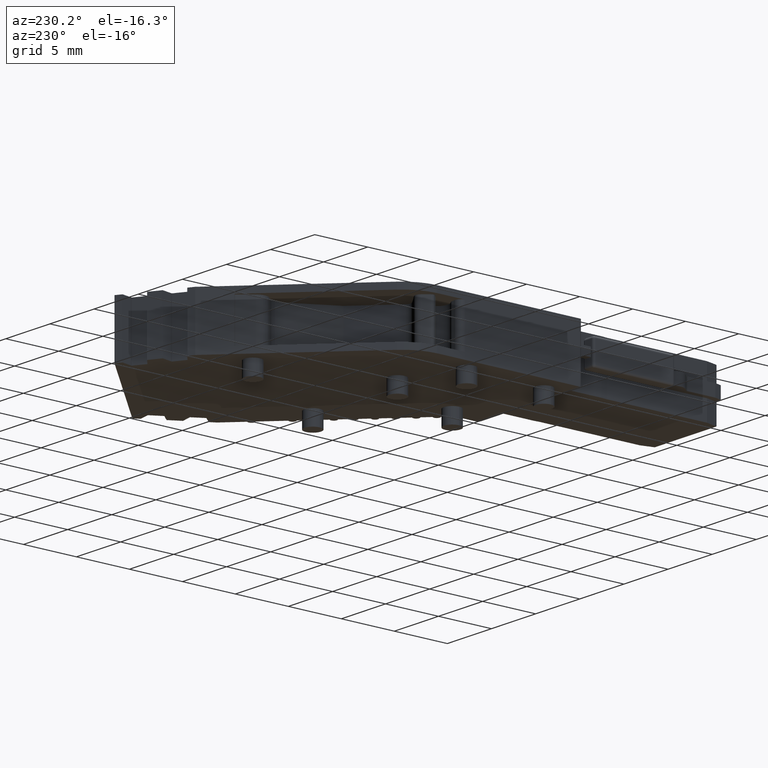
[diagram: clean part render]
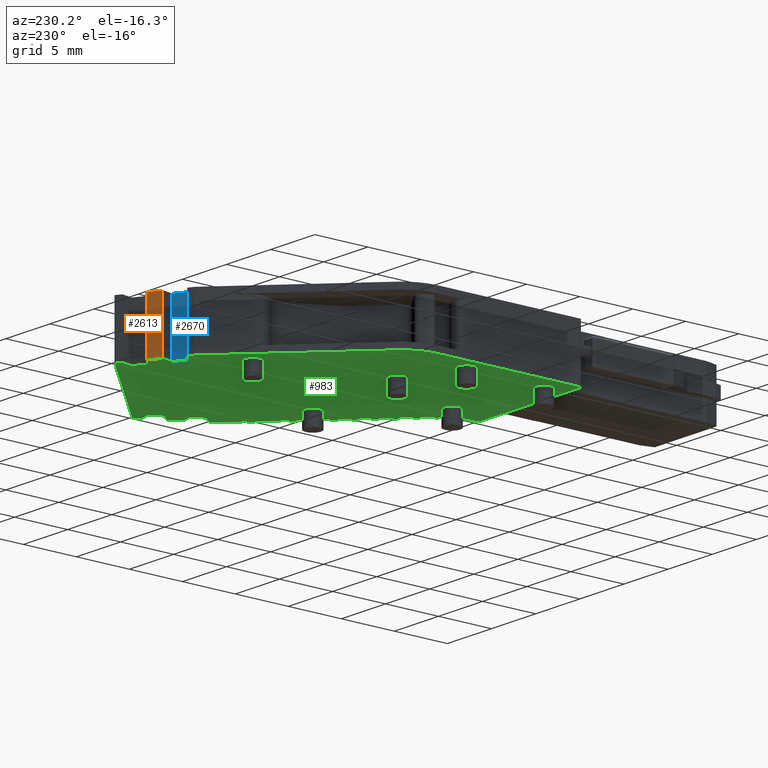
[diagram: same view with three faces highlighted in distinct colors, each labeled with its STEP entity id]
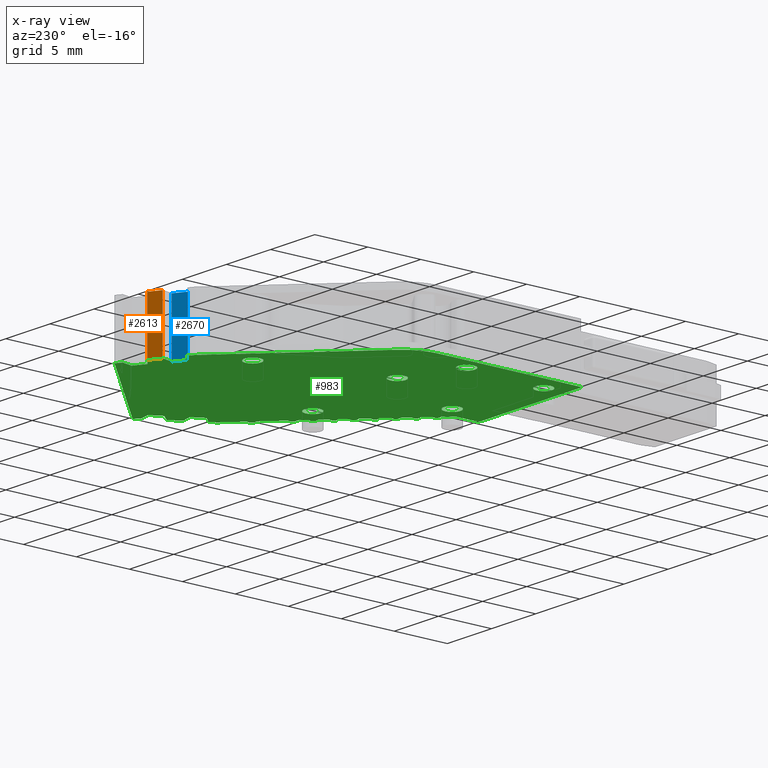
[diagram: x-ray of the same camera — body ghosted, the three highlighted faces saturated]
A machine part, auxiliary view with three faces highlighted in distinct colors.
The next image is the same camera in x-ray (body ghosted, the three faces saturated) — at least one of them is partly hidden behind the body in this view.
Their STEP definitions:

[orange] entity #2613 — the highlighted planar face has unit normal (-0.5, 0.866, 0).
#105 = LINE ( 'NONE', #997, #2638 ) ;
#200 = VERTEX_POINT ( 'NONE', #5147 ) ;
#626 = FACE_OUTER_BOUND ( 'NONE', #4317, .T. ) ;
#769 = VERTEX_POINT ( 'NONE', #5291 ) ;
#997 = CARTESIAN_POINT ( 'NONE',  ( 8.417137097009803200, 43.81367678528406600, 5.150000000000003000 ) ) ;
#1209 = DIRECTION ( 'NONE',  ( -0.0000000000000000000, -0.0000000000000000000, -1.000000000000000000 ) ) ;
#1239 = EDGE_CURVE ( 'NONE', #200, #769, #105, .T. ) ;
#1716 = CARTESIAN_POINT ( 'NONE',  ( 7.378705921240844600, 43.21413918230435100, 0.0000000000000000000 ) ) ;
#1759 = DIRECTION ( 'NONE',  ( -0.4999994271306807400, 0.8660257345304417400, 0.0000000000000000000 ) ) ;
#1802 = CARTESIAN_POINT ( 'NONE',  ( 7.378705921240842800, 43.21413918230435800, 0.0000000000000000000 ) ) ;
#2036 = DIRECTION ( 'NONE',  ( 0.8660257345304417400, 0.4999994271306807400, -0.0000000000000000000 ) ) ;
#2120 = ORIENTED_EDGE ( 'NONE', *, *, #2528, .T. ) ;
#2246 = LINE ( 'NONE', #4117, #5973 ) ;
#2528 = EDGE_CURVE ( 'NONE', #3156, #4319, #2246, .T. ) ;
#2613 = ADVANCED_FACE ( 'NONE', ( #626 ), #5631, .T. ) ;
#2638 = VECTOR ( 'NONE', #2036, 1000.000000000000000 ) ;
#2843 = EDGE_CURVE ( 'NONE', #3156, #769, #5892, .T. ) ;
#2887 = VECTOR ( 'NONE', #1209, 1000.000000000000000 ) ;
#2918 = DIRECTION ( 'NONE',  ( 0.0000000000000000000, 0.0000000000000000000, 1.000000000000000000 ) ) ;
#3097 = ORIENTED_EDGE ( 'NONE', *, *, #5575, .F. ) ;
#3156 = VERTEX_POINT ( 'NONE', #4101 ) ;
#3196 = DIRECTION ( 'NONE',  ( -0.8660257345304417400, -0.4999994271306807400, 0.0000000000000000000 ) ) ;
#3602 = VECTOR ( 'NONE', #2918, 1000.000000000000000 ) ;
#3804 = ORIENTED_EDGE ( 'NONE', *, *, #2843, .F. ) ;
#4101 = CARTESIAN_POINT ( 'NONE',  ( 8.417137097009803200, 43.81367678528406600, 0.0000000000000000000 ) ) ;
#4117 = CARTESIAN_POINT ( 'NONE',  ( 8.417137097009803200, 43.81367678528406600, 0.0000000000000000000 ) ) ;
#4317 = EDGE_LOOP ( 'NONE', ( #3804, #2120, #3097, #4967 ) ) ;
#4319 = VERTEX_POINT ( 'NONE', #1802 ) ;
#4658 = CARTESIAN_POINT ( 'NONE',  ( 8.417137097009803200, 43.81367678528406600, 0.0000000000000000000 ) ) ;
#4850 = LINE ( 'NONE', #1716, #2887 ) ;
#4967 = ORIENTED_EDGE ( 'NONE', *, *, #1239, .T. ) ;
#5107 = DIRECTION ( 'NONE',  ( -0.8660257345304417400, -0.4999994271306807400, 0.0000000000000000000 ) ) ;
#5147 = CARTESIAN_POINT ( 'NONE',  ( 7.378705921240842800, 43.21413918230435800, 5.150000000000003000 ) ) ;
#5291 = CARTESIAN_POINT ( 'NONE',  ( 8.417137097009803200, 43.81367678528406600, 5.150000000000003900 ) ) ;
#5575 = EDGE_CURVE ( 'NONE', #200, #4319, #4850, .T. ) ;
#5631 = PLANE ( 'NONE',  #6143 ) ;
#5833 = CARTESIAN_POINT ( 'NONE',  ( 8.417137097009803200, 43.81367678528406600, 0.0000000000000000000 ) ) ;
#5892 = LINE ( 'NONE', #5833, #3602 ) ;
#5973 = VECTOR ( 'NONE', #5107, 1000.000000000000000 ) ;
#6143 = AXIS2_PLACEMENT_3D ( 'NONE', #4658, #1759, #3196 ) ;

[blue] entity #2670 — the highlighted planar face has unit normal (-0.5, 0.866, 0).
#196 = DIRECTION ( 'NONE',  ( -0.0000000000000000000, -0.0000000000000000000, -1.000000000000000000 ) ) ;
#217 = ORIENTED_EDGE ( 'NONE', *, *, #4608, .T. ) ;
#232 = ORIENTED_EDGE ( 'NONE', *, *, #5470, .T. ) ;
#567 = DIRECTION ( 'NONE',  ( 0.8660257141351492800, 0.4999994624564156900, -0.0000000000000000000 ) ) ;
#842 = VECTOR ( 'NONE', #196, 1000.000000000000000 ) ;
#1777 = AXIS2_PLACEMENT_3D ( 'NONE', #5677, #2750, #3255 ) ;
#1803 = EDGE_LOOP ( 'NONE', ( #217, #4078, #3101, #232 ) ) ;
#2213 = VECTOR ( 'NONE', #567, 1000.000000000000000 ) ;
#2348 = CARTESIAN_POINT ( 'NONE',  ( 6.517595756780844200, 41.55575552381099400, 0.0000000000000000000 ) ) ;
#2375 = CARTESIAN_POINT ( 'NONE',  ( 7.599617310622031500, 42.18046006370693100, 0.5000000000000000000 ) ) ;
#2646 = CARTESIAN_POINT ( 'NONE',  ( 6.517595756780843400, 41.55575552381099400, 0.0000000000000000000 ) ) ;
#2670 = ADVANCED_FACE ( 'NONE', ( #5896 ), #4758, .T. ) ;
#2702 = CARTESIAN_POINT ( 'NONE',  ( 7.599617310622029700, 42.18046006370693100, 0.0000000000000000000 ) ) ;
#2750 = DIRECTION ( 'NONE',  ( -0.4999994624564156900, 0.8660257141351492800, 0.0000000000000000000 ) ) ;
#2941 = CARTESIAN_POINT ( 'NONE',  ( 7.599617310622033300, 42.18046006370693100, 0.0000000000000000000 ) ) ;
#2982 = CARTESIAN_POINT ( 'NONE',  ( 7.599617310622031500, 42.18046006370693100, 5.150000000000000400 ) ) ;
#3101 = ORIENTED_EDGE ( 'NONE', *, *, #4010, .F. ) ;
#3132 = LINE ( 'NONE', #2702, #3734 ) ;
#3255 = DIRECTION ( 'NONE',  ( -0.8660257141351492800, -0.4999994624564156900, 0.0000000000000000000 ) ) ;
#3344 = DIRECTION ( 'NONE',  ( -0.0000000000000000000, -0.0000000000000000000, -1.000000000000000000 ) ) ;
#3734 = VECTOR ( 'NONE', #4130, 1000.000000000000000 ) ;
#3912 = VERTEX_POINT ( 'NONE', #2982 ) ;
#4010 = EDGE_CURVE ( 'NONE', #4510, #5625, #4251, .T. ) ;
#4078 = ORIENTED_EDGE ( 'NONE', *, *, #4131, .T. ) ;
#4130 = DIRECTION ( 'NONE',  ( -0.8660257141351492800, -0.4999994624564156900, 0.0000000000000000000 ) ) ;
#4131 = EDGE_CURVE ( 'NONE', #5799, #5625, #3132, .T. ) ;
#4251 = LINE ( 'NONE', #2646, #842 ) ;
#4510 = VERTEX_POINT ( 'NONE', #5889 ) ;
#4548 = CARTESIAN_POINT ( 'NONE',  ( 7.599617310622029700, 42.18046006370693100, 5.150000000000000400 ) ) ;
#4608 = EDGE_CURVE ( 'NONE', #3912, #5799, #6255, .T. ) ;
#4758 = PLANE ( 'NONE',  #1777 ) ;
#4790 = LINE ( 'NONE', #4548, #2213 ) ;
#4945 = VECTOR ( 'NONE', #3344, 1000.000000000000000 ) ;
#5470 = EDGE_CURVE ( 'NONE', #4510, #3912, #4790, .T. ) ;
#5625 = VERTEX_POINT ( 'NONE', #2348 ) ;
#5677 = CARTESIAN_POINT ( 'NONE',  ( 7.599617310622029700, 42.18046006370693100, 0.5000000000000000000 ) ) ;
#5799 = VERTEX_POINT ( 'NONE', #2941 ) ;
#5889 = CARTESIAN_POINT ( 'NONE',  ( 6.517595756780843400, 41.55575552381099400, 5.150000000000000400 ) ) ;
#5896 = FACE_OUTER_BOUND ( 'NONE', #1803, .T. ) ;
#6255 = LINE ( 'NONE', #2375, #4945 ) ;

[green] entity #983 — the highlighted planar face has unit normal (0, 0, 1).
#2 = CARTESIAN_POINT ( 'NONE',  ( 5.053561328662396200, 15.08098714324118100, 0.0000000000000000000 ) ) ;
#11 = LINE ( 'NONE', #807, #3811 ) ;
#20 = EDGE_CURVE ( 'NONE', #5696, #5751, #2652, .T. ) ;
#30 = FACE_OUTER_BOUND ( 'NONE', #5474, .T. ) ;
#44 = DIRECTION ( 'NONE',  ( 1.000000000000000000, 0.0000000000000000000, 0.0000000000000000000 ) ) ;
#63 = CARTESIAN_POINT ( 'NONE',  ( 7.569491533559510500, 42.23263917925216800, 0.0000000000000000000 ) ) ;
#71 = ORIENTED_EDGE ( 'NONE', *, *, #5615, .F. ) ;
#97 = DIRECTION ( 'NONE',  ( 1.000000000000000000, 0.0000000000000000000, 0.0000000000000000000 ) ) ;
#98 = VECTOR ( 'NONE', #5073, 1000.000000000000100 ) ;
#106 = CARTESIAN_POINT ( 'NONE',  ( 9.246120766439412700, 21.22911409521963600, 0.0000000000000000000 ) ) ;
#121 = DIRECTION ( 'NONE',  ( -0.0000000000000000000, -0.0000000000000000000, -1.000000000000000000 ) ) ;
#136 = EDGE_CURVE ( 'NONE', #5364, #434, #5919, .T. ) ;
#157 = CARTESIAN_POINT ( 'NONE',  ( 1.193791458745420100, 26.86799290260244200, 0.0000000000000000000 ) ) ;
#164 = VERTEX_POINT ( 'NONE', #4546 ) ;
#167 = CARTESIAN_POINT ( 'NONE',  ( -0.3690583423251498900, 26.86799290260244200, 0.0000000000000000000 ) ) ;
#174 = LINE ( 'NONE', #1232, #3452 ) ;
#185 = CARTESIAN_POINT ( 'NONE',  ( -6.359304324338320500, 28.74249367019647700, 0.0000000000000000000 ) ) ;
#197 = LINE ( 'NONE', #2931, #3403 ) ;
#203 = CARTESIAN_POINT ( 'NONE',  ( 10.06298601933917100, 44.76391041218734300, 0.0000000000000000000 ) ) ;
#205 = VERTEX_POINT ( 'NONE', #5670 ) ;
#212 = EDGE_CURVE ( 'NONE', #1765, #1897, #4213, .T. ) ;
#221 = AXIS2_PLACEMENT_3D ( 'NONE', #1697, #712, #4097 ) ;
#235 = CIRCLE ( 'NONE', #2150, 0.2999999353295503800 ) ;
#238 = VECTOR ( 'NONE', #1479, 1000.000000000000100 ) ;
#246 = DIRECTION ( 'NONE',  ( 0.0000000000000000000, 0.0000000000000000000, 1.000000000000000000 ) ) ;
#252 = DIRECTION ( 'NONE',  ( 1.000000000000000000, 0.0000000000000000000, 0.0000000000000000000 ) ) ;
#259 = LINE ( 'NONE', #640, #3018 ) ;
#264 = AXIS2_PLACEMENT_3D ( 'NONE', #3171, #246, #4066 ) ;
#270 = VERTEX_POINT ( 'NONE', #1408 ) ;
#271 = DIRECTION ( 'NONE',  ( 1.000000000000000000, 0.0000000000000000000, 0.0000000000000000000 ) ) ;
#284 = VECTOR ( 'NONE', #1959, 1000.000000000000000 ) ;
#311 = CIRCLE ( 'NONE', #4687, 0.3000000000000779800 ) ;
#320 = EDGE_CURVE ( 'NONE', #1724, #205, #1726, .T. ) ;
#323 = DIRECTION ( 'NONE',  ( -0.7071067811865476800, 0.7071067811865474600, 0.0000000000000000000 ) ) ;
#345 = ORIENTED_EDGE ( 'NONE', *, *, #2044, .F. ) ;
#350 = DIRECTION ( 'NONE',  ( 0.0000000000000000000, 0.0000000000000000000, 1.000000000000000000 ) ) ;
#362 = CARTESIAN_POINT ( 'NONE',  ( 10.60128161725280000, 45.07468415095088000, 0.0000000000000000000 ) ) ;
#363 = VERTEX_POINT ( 'NONE', #4603 ) ;
#365 = CARTESIAN_POINT ( 'NONE',  ( 10.51891263662013600, 22.50190639043669800, 0.0000000000000000000 ) ) ;
#366 = DIRECTION ( 'NONE',  ( 0.0000000000000000000, 0.0000000000000000000, 1.000000000000000000 ) ) ;
#367 = DIRECTION ( 'NONE',  ( -0.4999779410327700500, 0.8660381391605289600, 0.0000000000000000000 ) ) ;
#368 = LINE ( 'NONE', #4973, #2980 ) ;
#396 = FACE_BOUND ( 'NONE', #3970, .T. ) ;
#422 = VERTEX_POINT ( 'NONE', #3349 ) ;
#426 = VERTEX_POINT ( 'NONE', #4768 ) ;
#434 = VERTEX_POINT ( 'NONE', #2864 ) ;
#481 = CARTESIAN_POINT ( 'NONE',  ( 6.487469979718993900, 41.60793463935623000, 0.0000000000000000000 ) ) ;
#483 = EDGE_CURVE ( 'NONE', #2877, #2666, #5217, .T. ) ;
#524 = CIRCLE ( 'NONE', #5891, 0.7814249005352880100 ) ;
#538 = CIRCLE ( 'NONE', #6186, 3.999999999999993300 ) ;
#545 = LINE ( 'NONE', #5194, #1236 ) ;
#551 = DIRECTION ( 'NONE',  ( 0.7071067811865474600, 0.7071067811865474600, 0.0000000000000000000 ) ) ;
#553 = VECTOR ( 'NONE', #3299, 1000.000000000000100 ) ;
#561 = VECTOR ( 'NONE', #2063, 1000.000000000000000 ) ;
#568 = VERTEX_POINT ( 'NONE', #4377 ) ;
#578 = DIRECTION ( 'NONE',  ( -0.0000000000000000000, -0.0000000000000000000, -1.000000000000000000 ) ) ;
#598 = EDGE_CURVE ( 'NONE', #2821, #5705, #2333, .T. ) ;
#630 = EDGE_CURVE ( 'NONE', #4849, #1059, #1176, .T. ) ;
#637 = LINE ( 'NONE', #4057, #2565 ) ;
#640 = CARTESIAN_POINT ( 'NONE',  ( 19.41143624192685000, 34.62444286839165400, 0.0000000000000000000 ) ) ;
#652 = VERTEX_POINT ( 'NONE', #1653 ) ;
#655 = VERTEX_POINT ( 'NONE', #6081 ) ;
#679 = DIRECTION ( 'NONE',  ( 0.7071067811865474600, 0.7071067811865474600, 0.0000000000000000000 ) ) ;
#684 = DIRECTION ( 'NONE',  ( 0.5000018753484299900, -0.8660243210488104400, 0.0000000000000000000 ) ) ;
#691 = CARTESIAN_POINT ( 'NONE',  ( 11.57957272324111600, 23.56256649195620400, 0.0000000000000000000 ) ) ;
#696 = ORIENTED_EDGE ( 'NONE', *, *, #4821, .F. ) ;
#697 = CARTESIAN_POINT ( 'NONE',  ( 5.441429294306676200, 17.42442262308690100, 0.0000000000000000000 ) ) ;
#712 = DIRECTION ( 'NONE',  ( 0.0000000000000000000, 0.0000000000000000000, 1.000000000000000000 ) ) ;
#719 = DIRECTION ( 'NONE',  ( 0.7071067811865474600, 0.7071067811865474600, 0.0000000000000000000 ) ) ;
#722 = EDGE_CURVE ( 'NONE', #2199, #1747, #2706, .T. ) ;
#758 = DIRECTION ( 'NONE',  ( 0.7071067811865474600, 0.7071067811865474600, 0.0000000000000000000 ) ) ;
#760 = CIRCLE ( 'NONE', #3390, 0.7814249005352880100 ) ;
#789 = EDGE_CURVE ( 'NONE', #2435, #1186, #5294, .T. ) ;
#795 = VECTOR ( 'NONE', #6294, 1000.000000000000000 ) ;
#807 = CARTESIAN_POINT ( 'NONE',  ( 3.853561328662306700, 15.08098714324118100, 0.0000000000000000000 ) ) ;
#813 = ORIENTED_EDGE ( 'NONE', *, *, #1407, .F. ) ;
#820 = CIRCLE ( 'NONE', #2265, 0.7814249005352880100 ) ;
#832 = DIRECTION ( 'NONE',  ( 0.0000000000000000000, 0.0000000000000000000, 1.000000000000000000 ) ) ;
#834 = CARTESIAN_POINT ( 'NONE',  ( 7.336932335450018900, 19.31992579790231400, 0.0000000000000000000 ) ) ;
#836 = LINE ( 'NONE', #2588, #3500 ) ;
#837 = CARTESIAN_POINT ( 'NONE',  ( 5.353561328662475000, 17.21229058873080200, 0.0000000000000000000 ) ) ;
#841 = DIRECTION ( 'NONE',  ( 0.0000000000000000000, 0.0000000000000000000, 1.000000000000000000 ) ) ;
#843 = CARTESIAN_POINT ( 'NONE',  ( 5.441429294306676200, 17.42442262308690100, 0.0000000000000000000 ) ) ;
#846 = EDGE_CURVE ( 'NONE', #1423, #1751, #1867, .T. ) ;
#867 = EDGE_CURVE ( 'NONE', #1378, #4991, #259, .T. ) ;
#872 = AXIS2_PLACEMENT_3D ( 'NONE', #3896, #1022, #4383 ) ;
#892 = CARTESIAN_POINT ( 'NONE',  ( 5.441429294306676200, 17.42442262308690100, 0.0000000000000000000 ) ) ;
#895 = CARTESIAN_POINT ( 'NONE',  ( 7.336932335450018900, 19.31992579790231400, 0.0000000000000000000 ) ) ;
#928 = DIRECTION ( 'NONE',  ( 0.0000000000000000000, 0.0000000000000000000, 1.000000000000000000 ) ) ;
#930 = DIRECTION ( 'NONE',  ( 0.0000000000000000000, 0.0000000000000000000, 1.000000000000000000 ) ) ;
#932 = EDGE_CURVE ( 'NONE', #4786, #2298, #637, .T. ) ;
#940 = CARTESIAN_POINT ( 'NONE',  ( 8.397592380961659900, 20.38058594053648800, 0.0000000000000000000 ) ) ;
#951 = DIRECTION ( 'NONE',  ( 0.7071067811865474600, 0.7071067811865474600, 0.0000000000000000000 ) ) ;
#958 = DIRECTION ( 'NONE',  ( 0.0000000000000000000, 0.0000000000000000000, 1.000000000000000000 ) ) ;
#972 = DIRECTION ( 'NONE',  ( -0.0000000000000000000, -0.0000000000000000000, -1.000000000000000000 ) ) ;
#973 = CARTESIAN_POINT ( 'NONE',  ( 3.998057139440770700, 18.70546551193510300, 0.0000000000000000000 ) ) ;
#983 = ADVANCED_FACE ( 'NONE', ( #30, #1329, #4975, #396, #5377, #5757, #5134 ), #2169, .F. ) ;
#989 = EDGE_CURVE ( 'NONE', #5705, #2680, #5454, .T. ) ;
#991 = ORIENTED_EDGE ( 'NONE', *, *, #5408, .F. ) ;
#1005 = EDGE_LOOP ( 'NONE', ( #5924, #2965 ) ) ;
#1012 = CARTESIAN_POINT ( 'NONE',  ( -6.359303499124215400, 15.28098702660942700, 0.0000000000000000000 ) ) ;
#1022 = DIRECTION ( 'NONE',  ( -0.0000000000000000000, -0.0000000000000000000, -1.000000000000000000 ) ) ;
#1025 = EDGE_CURVE ( 'NONE', #6021, #4036, #3529, .T. ) ;
#1032 = DIRECTION ( 'NONE',  ( 1.000000000000000000, 0.0000000000000000000, 0.0000000000000000000 ) ) ;
#1035 = VECTOR ( 'NONE', #1887, 1000.000000000000100 ) ;
#1037 = ORIENTED_EDGE ( 'NONE', *, *, #789, .F. ) ;
#1042 = ORIENTED_EDGE ( 'NONE', *, *, #6263, .F. ) ;
#1047 = LINE ( 'NONE', #362, #4784 ) ;
#1059 = VERTEX_POINT ( 'NONE', #2399 ) ;
#1071 = AXIS2_PLACEMENT_3D ( 'NONE', #691, #4037, #2148 ) ;
#1101 = DIRECTION ( 'NONE',  ( 1.000000000000000000, 0.0000000000000000000, 0.0000000000000000000 ) ) ;
#1102 = ORIENTED_EDGE ( 'NONE', *, *, #1539, .F. ) ;
#1110 = CARTESIAN_POINT ( 'NONE',  ( 6.276272166461593500, 18.25926553179402100, 0.0000000000000000000 ) ) ;
#1119 = DIRECTION ( 'NONE',  ( 1.000000000000000000, 0.0000000000000000000, 0.0000000000000000000 ) ) ;
#1138 = LINE ( 'NONE', #3584, #6172 ) ;
#1161 = AXIS2_PLACEMENT_3D ( 'NONE', #1461, #5885, #1967 ) ;
#1175 = DIRECTION ( 'NONE',  ( 1.000000000000000000, 0.0000000000000000000, 0.0000000000000000000 ) ) ;
#1176 = CIRCLE ( 'NONE', #1997, 0.7814249005352884600 ) ;
#1179 = DIRECTION ( 'NONE',  ( 1.000000000000000000, 0.0000000000000000000, 0.0000000000000000000 ) ) ;
#1183 = DIRECTION ( 'NONE',  ( 1.000000000000000000, 0.0000000000000000000, 0.0000000000000000000 ) ) ;
#1185 = CARTESIAN_POINT ( 'NONE',  ( 9.171748760727400200, 43.15770455214821800, 0.0000000000000000000 ) ) ;
#1186 = VERTEX_POINT ( 'NONE', #2554 ) ;
#1192 = ORIENTED_EDGE ( 'NONE', *, *, #4700, .F. ) ;
#1232 = CARTESIAN_POINT ( 'NONE',  ( 7.378705921240844600, 43.21413918230435100, 0.0000000000000000000 ) ) ;
#1236 = VECTOR ( 'NONE', #1301, 1000.000000000000100 ) ;
#1243 = EDGE_CURVE ( 'NONE', #3789, #5788, #6135, .T. ) ;
#1283 = DIRECTION ( 'NONE',  ( -0.0000000000000000000, -0.0000000000000000000, -1.000000000000000000 ) ) ;
#1301 = DIRECTION ( 'NONE',  ( 0.7071067811865474600, 0.7071067811865474600, 0.0000000000000000000 ) ) ;
#1304 = VECTOR ( 'NONE', #684, 1000.000000000000000 ) ;
#1323 = VECTOR ( 'NONE', #3548, 1000.000000000000100 ) ;
#1326 = EDGE_CURVE ( 'NONE', #4938, #2292, #4199, .T. ) ;
#1329 = FACE_BOUND ( 'NONE', #1508, .T. ) ;
#1347 = ORIENTED_EDGE ( 'NONE', *, *, #3522, .F. ) ;
#1359 = CARTESIAN_POINT ( 'NONE',  ( 10.60128161725279800, 45.07468415095088000, 0.0000000000000000000 ) ) ;
#1366 = EDGE_CURVE ( 'NONE', #3732, #6252, #3752, .T. ) ;
#1378 = VERTEX_POINT ( 'NONE', #4521 ) ;
#1383 = LINE ( 'NONE', #2032, #2374 ) ;
#1389 = CARTESIAN_POINT ( 'NONE',  ( -6.359303499124221700, 15.28098713097978000, 0.0000000000000000000 ) ) ;
#1404 = CIRCLE ( 'NONE', #4123, 0.3000000452256096400 ) ;
#1407 = EDGE_CURVE ( 'NONE', #4319, #2125, #174, .T. ) ;
#1408 = CARTESIAN_POINT ( 'NONE',  ( 13.91302543081197900, 25.89601875959220200, 0.0000000000000000000 ) ) ;
#1411 = CARTESIAN_POINT ( 'NONE',  ( 7.549064253352002900, 19.53205787569365300, 0.0000000000000000000 ) ) ;
#1417 = EDGE_CURVE ( 'NONE', #1059, #4849, #2480, .T. ) ;
#1423 = VERTEX_POINT ( 'NONE', #1772 ) ;
#1435 = CARTESIAN_POINT ( 'NONE',  ( -0.4864261743824188100, 0.2808382827205662100, 6.938893903907228400E-015 ) ) ;
#1436 = VERTEX_POINT ( 'NONE', #1872 ) ;
#1441 = LINE ( 'NONE', #1494, #3341 ) ;
#1461 = CARTESIAN_POINT ( 'NONE',  ( 3.638254084500435000, 37.83036769888580200, 0.0000000000000000000 ) ) ;
#1462 = LINE ( 'NONE', #4380, #1767 ) ;
#1479 = DIRECTION ( 'NONE',  ( 0.4999999999999958400, 0.8660254037844410400, 0.0000000000000000000 ) ) ;
#1480 = AXIS2_PLACEMENT_3D ( 'NONE', #1757, #2262, #3193 ) ;
#1490 = CARTESIAN_POINT ( 'NONE',  ( 9.171748760727396600, 43.15770455214821800, 0.0000000000000000000 ) ) ;
#1494 = CARTESIAN_POINT ( 'NONE',  ( 5.441429294306676200, 17.42442262308690100, 0.0000000000000000000 ) ) ;
#1497 = CARTESIAN_POINT ( 'NONE',  ( 18.84316634209369200, 31.74937846934562600, 0.0000000000000000000 ) ) ;
#1508 = EDGE_LOOP ( 'NONE', ( #2453, #3726 ) ) ;
#1518 = CARTESIAN_POINT ( 'NONE',  ( 5.441429294306676200, 17.42442262308690100, 0.0000000000000000000 ) ) ;
#1539 = EDGE_CURVE ( 'NONE', #3041, #5950, #3004, .T. ) ;
#1546 = CARTESIAN_POINT ( 'NONE',  ( 5.734307113917700400, 42.26264773539260500, 0.0000000000000000000 ) ) ;
#1597 = LINE ( 'NONE', #843, #3490 ) ;
#1599 = CARTESIAN_POINT ( 'NONE',  ( 17.18478171928372000, 30.88826818566285900, 2.312964634635742700E-015 ) ) ;
#1638 = CARTESIAN_POINT ( 'NONE',  ( 17.80948722349426900, 31.97028985872347900, 1.387778780781445700E-014 ) ) ;
#1653 = CARTESIAN_POINT ( 'NONE',  ( 8.609724425132983000, 20.59271804747507400, 0.0000000000000000000 ) ) ;
#1662 = ORIENTED_EDGE ( 'NONE', *, *, #483, .F. ) ;
#1670 = CARTESIAN_POINT ( 'NONE',  ( 13.70089327822793200, 25.68388693492240500, 0.0000000000000000000 ) ) ;
#1676 = ORIENTED_EDGE ( 'NONE', *, *, #4409, .F. ) ;
#1690 = DIRECTION ( 'NONE',  ( 0.0000000000000000000, 0.0000000000000000000, 1.000000000000000000 ) ) ;
#1695 = LINE ( 'NONE', #1883, #5803 ) ;
#1697 = CARTESIAN_POINT ( 'NONE',  ( 9.458252591108717400, 21.44124624780430100, 0.0000000000000000000 ) ) ;
#1699 = DIRECTION ( 'NONE',  ( -0.8660203205300469600, 0.5000088043515180700, 0.0000000000000000000 ) ) ;
#1704 = DIRECTION ( 'NONE',  ( 0.0000000000000000000, 0.0000000000000000000, 1.000000000000000000 ) ) ;
#1707 = CARTESIAN_POINT ( 'NONE',  ( 8.697592439225905600, 20.38058594053648800, 0.0000000000000000000 ) ) ;
#1711 = AXIS2_PLACEMENT_3D ( 'NONE', #4231, #841, #4733 ) ;
#1724 = VERTEX_POINT ( 'NONE', #2069 ) ;
#1726 = CIRCLE ( 'NONE', #4503, 0.7814249005352880100 ) ;
#1734 = CARTESIAN_POINT ( 'NONE',  ( 4.779482039976058700, 18.70546551193510300, 0.0000000000000000000 ) ) ;
#1737 = ORIENTED_EDGE ( 'NONE', *, *, #3203, .F. ) ;
#1747 = VERTEX_POINT ( 'NONE', #5496 ) ;
#1751 = VERTEX_POINT ( 'NONE', #1599 ) ;
#1757 = CARTESIAN_POINT ( 'NONE',  ( -4.379259191451017900, 17.03926148029578200, 0.0000000000000000000 ) ) ;
#1765 = VERTEX_POINT ( 'NONE', #4019 ) ;
#1767 = VECTOR ( 'NONE', #4296, 1000.000000000000200 ) ;
#1770 = AXIS2_PLACEMENT_3D ( 'NONE', #3229, #3751, #2492 ) ;
#1772 = CARTESIAN_POINT ( 'NONE',  ( 17.23696178923660600, 30.85814253354017800, 0.0000000000000000000 ) ) ;
#1794 = CARTESIAN_POINT ( 'NONE',  ( 13.70089327822793200, 25.68388693492240500, 0.0000000000000000000 ) ) ;
#1799 = EDGE_CURVE ( 'NONE', #1958, #2504, #311, .T. ) ;
#1802 = CARTESIAN_POINT ( 'NONE',  ( 7.378705921240842800, 43.21413918230435800, 0.0000000000000000000 ) ) ;
#1823 = DIRECTION ( 'NONE',  ( 0.0000000000000000000, 0.0000000000000000000, 1.000000000000000000 ) ) ;
#1833 = CARTESIAN_POINT ( 'NONE',  ( 6.276272166461593500, 18.25926553179402100, 0.0000000000000000000 ) ) ;
#1848 = CIRCLE ( 'NONE', #2515, 0.7814249005352880100 ) ;
#1867 = LINE ( 'NONE', #3518, #561 ) ;
#1872 = CARTESIAN_POINT ( 'NONE',  ( -4.077879474449465700, 24.72793743846516500, 0.0000000000000000000 ) ) ;
#1883 = CARTESIAN_POINT ( 'NONE',  ( 19.35925713628780500, 34.65456863973447800, 0.0000000000000000000 ) ) ;
#1884 = ORIENTED_EDGE ( 'NONE', *, *, #1799, .F. ) ;
#1887 = DIRECTION ( 'NONE',  ( -0.8660333243002773500, -0.4999862810132001400, 0.0000000000000000000 ) ) ;
#1897 = VERTEX_POINT ( 'NONE', #1707 ) ;
#1898 = DIRECTION ( 'NONE',  ( 1.000000000000000000, 0.0000000000000000000, 0.0000000000000000000 ) ) ;
#1920 = VERTEX_POINT ( 'NONE', #2683 ) ;
#1922 = EDGE_CURVE ( 'NONE', #652, #2136, #3677, .T. ) ;
#1924 = DIRECTION ( 'NONE',  ( 1.000000000000000000, 0.0000000000000000000, 0.0000000000000000000 ) ) ;
#1926 = CARTESIAN_POINT ( 'NONE',  ( 6.064140141121901800, 18.04713346990212500, 0.0000000000000000000 ) ) ;
#1930 = DIRECTION ( 'NONE',  ( 0.8660243210511970900, -0.5000018753442963000, 0.0000000000000000000 ) ) ;
#1958 = VERTEX_POINT ( 'NONE', #2 ) ;
#1959 = DIRECTION ( 'NONE',  ( 0.4999831597345778500, -0.8660351262979046900, 0.0000000000000000000 ) ) ;
#1967 = DIRECTION ( 'NONE',  ( 1.000000000000000000, 0.0000000000000000000, 0.0000000000000000000 ) ) ;
#1975 = ORIENTED_EDGE ( 'NONE', *, *, #3766, .F. ) ;
#1979 = ORIENTED_EDGE ( 'NONE', *, *, #6222, .F. ) ;
#1991 = DIRECTION ( 'NONE',  ( 0.4999994271304298900, 0.8660257345305865100, 0.0000000000000000000 ) ) ;
#1997 = AXIS2_PLACEMENT_3D ( 'NONE', #5068, #4526, #2128 ) ;
#2003 = CARTESIAN_POINT ( 'NONE',  ( 10.25377031456895500, 43.78240909204515700, 0.0000000000000000000 ) ) ;
#2015 = EDGE_CURVE ( 'NONE', #2365, #1765, #5119, .T. ) ;
#2032 = CARTESIAN_POINT ( 'NONE',  ( 19.35925713628780500, 34.65456863973447800, 0.0000000000000000000 ) ) ;
#2033 = EDGE_CURVE ( 'NONE', #5950, #2821, #2392, .T. ) ;
#2044 = EDGE_CURVE ( 'NONE', #1751, #5579, #4499, .T. ) ;
#2049 = EDGE_CURVE ( 'NONE', #363, #2617, #1848, .T. ) ;
#2053 = CARTESIAN_POINT ( 'NONE',  ( -3.597834290915729900, 17.03926148029578200, 0.0000000000000000000 ) ) ;
#2057 = LINE ( 'NONE', #4863, #284 ) ;
#2063 = DIRECTION ( 'NONE',  ( -0.8660291790031664500, 0.4999934610723439400, 0.0000000000000000000 ) ) ;
#2064 = CARTESIAN_POINT ( 'NONE',  ( 17.58205096522169000, 29.56504429400190800, 0.0000000000000000000 ) ) ;
#2069 = CARTESIAN_POINT ( 'NONE',  ( 10.10419865916262200, 26.12130950134045200, 0.0000000000000000000 ) ) ;
#2079 = CARTESIAN_POINT ( 'NONE',  ( 10.51891263662013600, 22.50190639043669800, 0.0000000000000000000 ) ) ;
#2083 = ORIENTED_EDGE ( 'NONE', *, *, #2526, .F. ) ;
#2090 = CARTESIAN_POINT ( 'NONE',  ( -5.640729275520041800, 24.72793743846516500, 0.0000000000000000000 ) ) ;
#2114 = DIRECTION ( 'NONE',  ( 1.000000000000000000, 0.0000000000000000000, 0.0000000000000000000 ) ) ;
#2125 = VERTEX_POINT ( 'NONE', #63 ) ;
#2128 = DIRECTION ( 'NONE',  ( 1.000000000000000000, 0.0000000000000000000, 0.0000000000000000000 ) ) ;
#2131 = CARTESIAN_POINT ( 'NONE',  ( 10.28389522464610000, 43.73022887398098400, 0.0000000000000000000 ) ) ;
#2136 = VERTEX_POINT ( 'NONE', #106 ) ;
#2148 = DIRECTION ( 'NONE',  ( 1.000000000000000000, 0.0000000000000000000, 0.0000000000000000000 ) ) ;
#2150 = AXIS2_PLACEMENT_3D ( 'NONE', #3148, #4600, #1175 ) ;
#2152 = ORIENTED_EDGE ( 'NONE', *, *, #5817, .F. ) ;
#2159 = DIRECTION ( 'NONE',  ( 4.736308120451242800E-016, 1.000000000000000000, 0.0000000000000000000 ) ) ;
#2169 = PLANE ( 'NONE',  #2208 ) ;
#2186 = ORIENTED_EDGE ( 'NONE', *, *, #5122, .F. ) ;
#2199 = VERTEX_POINT ( 'NONE', #5967 ) ;
#2208 = AXIS2_PLACEMENT_3D ( 'NONE', #6083, #6106, #5636 ) ;
#2215 = ORIENTED_EDGE ( 'NONE', *, *, #5911, .F. ) ;
#2219 = AXIS2_PLACEMENT_3D ( 'NONE', #4307, #930, #1898 ) ;
#2234 = CARTESIAN_POINT ( 'NONE',  ( 12.64023306808065300, 24.62322662765414800, 0.0000000000000000000 ) ) ;
#2246 = LINE ( 'NONE', #4117, #5973 ) ;
#2262 = DIRECTION ( 'NONE',  ( -0.0000000000000000000, -0.0000000000000000000, -1.000000000000000000 ) ) ;
#2265 = AXIS2_PLACEMENT_3D ( 'NONE', #4506, #121, #1101 ) ;
#2274 = EDGE_CURVE ( 'NONE', #655, #3467, #545, .T. ) ;
#2289 = CARTESIAN_POINT ( 'NONE',  ( 9.201873744110354600, 43.10552348092469500, 0.0000000000000000000 ) ) ;
#2292 = VERTEX_POINT ( 'NONE', #2729 ) ;
#2295 = VECTOR ( 'NONE', #4917, 1000.000000000000100 ) ;
#2298 = VERTEX_POINT ( 'NONE', #6141 ) ;
#2314 = VECTOR ( 'NONE', #3647, 1000.000000000000000 ) ;
#2333 = LINE ( 'NONE', #5489, #795 ) ;
#2336 = DIRECTION ( 'NONE',  ( 0.7071067811865474600, 0.7071067811865474600, 0.0000000000000000000 ) ) ;
#2348 = CARTESIAN_POINT ( 'NONE',  ( 6.517595756780844200, 41.55575552381099400, 0.0000000000000000000 ) ) ;
#2349 = CIRCLE ( 'NONE', #3613, 0.3000001551210739200 ) ;
#2352 = DIRECTION ( 'NONE',  ( 1.000000000000000000, 0.0000000000000000000, 0.0000000000000000000 ) ) ;
#2354 = ORIENTED_EDGE ( 'NONE', *, *, #4990, .F. ) ;
#2359 = VERTEX_POINT ( 'NONE', #1389 ) ;
#2365 = VERTEX_POINT ( 'NONE', #1411 ) ;
#2366 = ORIENTED_EDGE ( 'NONE', *, *, #1922, .F. ) ;
#2367 = LINE ( 'NONE', #1185, #3264 ) ;
#2372 = DIRECTION ( 'NONE',  ( 1.000000000000000000, 0.0000000000000000000, 0.0000000000000000000 ) ) ;
#2374 = VECTOR ( 'NONE', #4866, 1000.000000000000000 ) ;
#2392 = LINE ( 'NONE', #1497, #4032 ) ;
#2393 = VERTEX_POINT ( 'NONE', #6241 ) ;
#2398 = EDGE_CURVE ( 'NONE', #4717, #3789, #1404, .T. ) ;
#2399 = CARTESIAN_POINT ( 'NONE',  ( -5.160684091986306400, 17.03926148029578200, 0.0000000000000000000 ) ) ;
#2435 = VERTEX_POINT ( 'NONE', #5299 ) ;
#2439 = DIRECTION ( 'NONE',  ( -0.7071067952874921000, -0.7071067670856026100, 0.0000000000000000000 ) ) ;
#2452 = VERTEX_POINT ( 'NONE', #5391 ) ;
#2453 = ORIENTED_EDGE ( 'NONE', *, *, #630, .F. ) ;
#2470 = ORIENTED_EDGE ( 'NONE', *, *, #1243, .F. ) ;
#2472 = DIRECTION ( 'NONE',  ( 1.000000000000000000, 0.0000000000000000000, 0.0000000000000000000 ) ) ;
#2475 = VECTOR ( 'NONE', #367, 1000.000000000000100 ) ;
#2480 = CIRCLE ( 'NONE', #1480, 0.7814249005352884600 ) ;
#2492 = DIRECTION ( 'NONE',  ( 1.000000000000000000, 0.0000000000000000000, 0.0000000000000000000 ) ) ;
#2493 = DIRECTION ( 'NONE',  ( -0.5000018753401056500, 0.8660243210536164900, 0.0000000000000000000 ) ) ;
#2504 = VERTEX_POINT ( 'NONE', #5855 ) ;
#2507 = DIRECTION ( 'NONE',  ( 1.000000000000000000, 0.0000000000000000000, 0.0000000000000000000 ) ) ;
#2515 = AXIS2_PLACEMENT_3D ( 'NONE', #973, #3366, #2507 ) ;
#2526 = EDGE_CURVE ( 'NONE', #4177, #5696, #4125, .T. ) ;
#2528 = EDGE_CURVE ( 'NONE', #3156, #4319, #2246, .T. ) ;
#2535 = CIRCLE ( 'NONE', #2219, 0.2000000000001505900 ) ;
#2554 = CARTESIAN_POINT ( 'NONE',  ( 4.419678985035721700, 37.83036769888580200, 0.0000000000000000000 ) ) ;
#2565 = VECTOR ( 'NONE', #5561, 1000.000000000000200 ) ;
#2575 = CARTESIAN_POINT ( 'NONE',  ( 17.89167488527298000, 30.10497966774066100, 0.0000000000000000000 ) ) ;
#2588 = CARTESIAN_POINT ( 'NONE',  ( 5.441429294306676200, 17.42442262308690100, 0.0000000000000000000 ) ) ;
#2603 = CARTESIAN_POINT ( 'NONE',  ( 5.053561328662396200, 15.38098714324126000, 0.0000000000000000000 ) ) ;
#2617 = VERTEX_POINT ( 'NONE', #1734 ) ;
#2629 = VERTEX_POINT ( 'NONE', #185 ) ;
#2652 = LINE ( 'NONE', #3488, #2791 ) ;
#2666 = VERTEX_POINT ( 'NONE', #3759 ) ;
#2667 = CARTESIAN_POINT ( 'NONE',  ( -5.187731406781662900, 31.57092108245258900, 0.0000000000000000000 ) ) ;
#2680 = VERTEX_POINT ( 'NONE', #4237 ) ;
#2681 = CARTESIAN_POINT ( 'NONE',  ( 10.88562355969791000, 26.12130950134045200, 0.0000000000000000000 ) ) ;
#2683 = CARTESIAN_POINT ( 'NONE',  ( -6.159303499124642500, 15.08098714324118100, 0.0000000000000000000 ) ) ;
#2702 = CARTESIAN_POINT ( 'NONE',  ( 7.599617310622029700, 42.18046006370693100, 0.0000000000000000000 ) ) ;
#2706 = CIRCLE ( 'NONE', #221, 0.2999999353295503800 ) ;
#2712 = CARTESIAN_POINT ( 'NONE',  ( 6.487469979718990300, 41.60793463935623000, 0.0000000000000000000 ) ) ;
#2719 = EDGE_CURVE ( 'NONE', #2452, #3895, #5750, .T. ) ;
#2729 = CARTESIAN_POINT ( 'NONE',  ( 14.00089321355764000, 25.68388693492240500, 0.0000000000000000000 ) ) ;
#2749 = CARTESIAN_POINT ( 'NONE',  ( 11.57957272324111600, 23.56256649195620400, 0.0000000000000000000 ) ) ;
#2791 = VECTOR ( 'NONE', #551, 1000.000000000000100 ) ;
#2796 = CARTESIAN_POINT ( 'NONE',  ( 19.35925713628780500, 34.65456863973447800, 0.0000000000000000000 ) ) ;
#2812 = EDGE_CURVE ( 'NONE', #2298, #4916, #3894, .T. ) ;
#2821 = VERTEX_POINT ( 'NONE', #4783 ) ;
#2864 = CARTESIAN_POINT ( 'NONE',  ( 16.12221356548162600, 27.80520717907652900, 0.0000000000000000000 ) ) ;
#2877 = VERTEX_POINT ( 'NONE', #4329 ) ;
#2883 = ORIENTED_EDGE ( 'NONE', *, *, #4574, .F. ) ;
#2885 = ORIENTED_EDGE ( 'NONE', *, *, #212, .F. ) ;
#2915 = CIRCLE ( 'NONE', #4665, 0.3000000582640896500 ) ;
#2928 = ORIENTED_EDGE ( 'NONE', *, *, #3451, .F. ) ;
#2931 = CARTESIAN_POINT ( 'NONE',  ( 6.517595756780843400, 41.55575552381099400, 0.0000000000000000000 ) ) ;
#2939 = AXIS2_PLACEMENT_3D ( 'NONE', #5263, #1283, #1924 ) ;
#2941 = CARTESIAN_POINT ( 'NONE',  ( 7.599617310622033300, 42.18046006370693100, 0.0000000000000000000 ) ) ;
#2953 = DIRECTION ( 'NONE',  ( -0.7547102721650658100, 0.6560582330011050000, 0.0000000000000000000 ) ) ;
#2965 = ORIENTED_EDGE ( 'NONE', *, *, #2049, .F. ) ;
#2971 = AXIS2_PLACEMENT_3D ( 'NONE', #895, #832, #4218 ) ;
#2973 = EDGE_CURVE ( 'NONE', #5243, #4786, #3593, .T. ) ;
#2980 = VECTOR ( 'NONE', #719, 1000.000000000000100 ) ;
#2993 = CARTESIAN_POINT ( 'NONE',  ( 15.61008148628541800, 27.59307481506564100, 0.0000000000000000000 ) ) ;
#3004 = LINE ( 'NONE', #4299, #553 ) ;
#3005 = DIRECTION ( 'NONE',  ( 0.0000000000000000000, 0.0000000000000000000, 1.000000000000000000 ) ) ;
#3010 = VECTOR ( 'NONE', #1699, 1000.000000000000000 ) ;
#3012 = EDGE_CURVE ( 'NONE', #3467, #426, #5272, .T. ) ;
#3018 = VECTOR ( 'NONE', #4013, 1000.000000000000100 ) ;
#3041 = VERTEX_POINT ( 'NONE', #3084 ) ;
#3055 = AXIS2_PLACEMENT_3D ( 'NONE', #5039, #578, #1119 ) ;
#3084 = CARTESIAN_POINT ( 'NONE',  ( 17.86166633904038600, 31.94016408166251600, 9.251858538542970600E-015 ) ) ;
#3085 = VERTEX_POINT ( 'NONE', #2090 ) ;
#3108 = ORIENTED_EDGE ( 'NONE', *, *, #846, .F. ) ;
#3116 = CIRCLE ( 'NONE', #4528, 0.2999999353297082600 ) ;
#3129 = EDGE_CURVE ( 'NONE', #4916, #2629, #538, .T. ) ;
#3132 = LINE ( 'NONE', #2702, #3734 ) ;
#3148 = CARTESIAN_POINT ( 'NONE',  ( 9.458252591108717400, 21.44124624780430100, 0.0000000000000000000 ) ) ;
#3156 = VERTEX_POINT ( 'NONE', #4101 ) ;
#3158 = EDGE_CURVE ( 'NONE', #2136, #2199, #235, .T. ) ;
#3171 = CARTESIAN_POINT ( 'NONE',  ( 15.82221341036055200, 27.80520717907652900, 0.0000000000000000000 ) ) ;
#3180 = DIRECTION ( 'NONE',  ( 0.8660243210636867600, -0.5000018753226633800, 0.0000000000000000000 ) ) ;
#3193 = DIRECTION ( 'NONE',  ( 1.000000000000000000, 0.0000000000000000000, 0.0000000000000000000 ) ) ;
#3203 = EDGE_CURVE ( 'NONE', #422, #2452, #4035, .T. ) ;
#3210 = CARTESIAN_POINT ( 'NONE',  ( 11.87957287836242400, 23.56256649195620400, 0.0000000000000000000 ) ) ;
#3222 = EDGE_CURVE ( 'NONE', #2393, #4177, #3439, .T. ) ;
#3225 = DIRECTION ( 'NONE',  ( 1.000000000000000000, 0.0000000000000000000, 0.0000000000000000000 ) ) ;
#3227 = ORIENTED_EDGE ( 'NONE', *, *, #867, .F. ) ;
#3229 = CARTESIAN_POINT ( 'NONE',  ( 0.4123665582101351800, 26.86799290260244200, 0.0000000000000000000 ) ) ;
#3240 = ORIENTED_EDGE ( 'NONE', *, *, #5783, .F. ) ;
#3256 = EDGE_CURVE ( 'NONE', #5751, #5040, #2915, .T. ) ;
#3259 = VECTOR ( 'NONE', #758, 1000.000000000000100 ) ;
#3264 = VECTOR ( 'NONE', #4572, 1000.000000000000100 ) ;
#3272 = CARTESIAN_POINT ( 'NONE',  ( 18.78673171193776500, 33.54242130883196200, 0.0000000000000000000 ) ) ;
#3282 = VERTEX_POINT ( 'NONE', #2796 ) ;
#3299 = DIRECTION ( 'NONE',  ( 0.9816269327455139400, -0.1908102851227735400, 0.0000000000000000000 ) ) ;
#3306 = ORIENTED_EDGE ( 'NONE', *, *, #4131, .F. ) ;
#3332 = EDGE_CURVE ( 'NONE', #1920, #1958, #11, .T. ) ;
#3336 = LINE ( 'NONE', #892, #4081 ) ;
#3341 = VECTOR ( 'NONE', #4891, 1000.000000000000100 ) ;
#3349 = CARTESIAN_POINT ( 'NONE',  ( 10.28389522464609800, 43.73022887398098400, 0.0000000000000000000 ) ) ;
#3366 = DIRECTION ( 'NONE',  ( -0.0000000000000000000, -0.0000000000000000000, -1.000000000000000000 ) ) ;
#3390 = AXIS2_PLACEMENT_3D ( 'NONE', #3902, #972, #4461 ) ;
#3399 = ORIENTED_EDGE ( 'NONE', *, *, #3256, .F. ) ;
#3403 = VECTOR ( 'NONE', #2493, 1000.000000000000000 ) ;
#3422 = DIRECTION ( 'NONE',  ( -0.0000000000000000000, -0.0000000000000000000, -1.000000000000000000 ) ) ;
#3433 = CIRCLE ( 'NONE', #5177, 0.2999999483681397000 ) ;
#3439 = CIRCLE ( 'NONE', #1071, 0.3000001551213080700 ) ;
#3440 = ORIENTED_EDGE ( 'NONE', *, *, #4074, .F. ) ;
#3451 = EDGE_CURVE ( 'NONE', #6154, #655, #3513, .T. ) ;
#3452 = VECTOR ( 'NONE', #4138, 1000.000000000000100 ) ;
#3463 = CARTESIAN_POINT ( 'NONE',  ( 3.998057139440770700, 18.70546551193510300, 0.0000000000000000000 ) ) ;
#3467 = VERTEX_POINT ( 'NONE', #1926 ) ;
#3483 = ORIENTED_EDGE ( 'NONE', *, *, #2719, .F. ) ;
#3488 = CARTESIAN_POINT ( 'NONE',  ( 5.441429294306676200, 17.42442262308690100, 0.0000000000000000000 ) ) ;
#3490 = VECTOR ( 'NONE', #4178, 1000.000000000000100 ) ;
#3500 = VECTOR ( 'NONE', #679, 1000.000000000000100 ) ;
#3503 = ORIENTED_EDGE ( 'NONE', *, *, #20, .F. ) ;
#3504 = ORIENTED_EDGE ( 'NONE', *, *, #1366, .F. ) ;
#3513 = CIRCLE ( 'NONE', #3765, 0.3000000000001933300 ) ;
#3518 = CARTESIAN_POINT ( 'NONE',  ( 17.23696178923660600, 30.85814253354017800, 0.0000000000000000000 ) ) ;
#3522 = EDGE_CURVE ( 'NONE', #1186, #2435, #6187, .T. ) ;
#3525 = CARTESIAN_POINT ( 'NONE',  ( 12.64023306808065300, 24.62322662765414800, 0.0000000000000000000 ) ) ;
#3529 = CIRCLE ( 'NONE', #2939, 0.7814249005352850200 ) ;
#3548 = DIRECTION ( 'NONE',  ( 0.1908087690975458500, -0.9816272274318186300, 0.0000000000000000000 ) ) ;
#3552 = CARTESIAN_POINT ( 'NONE',  ( 10.06298601933917100, 44.76391041218734300, 0.0000000000000000000 ) ) ;
#3567 = DIRECTION ( 'NONE',  ( 0.0000000000000000000, 0.0000000000000000000, 1.000000000000000000 ) ) ;
#3584 = CARTESIAN_POINT ( 'NONE',  ( 17.58205096522168600, 29.56504429400190800, 0.0000000000000000000 ) ) ;
#3592 = VERTEX_POINT ( 'NONE', #3863 ) ;
#3593 = LINE ( 'NONE', #481, #5886 ) ;
#3613 = AXIS2_PLACEMENT_3D ( 'NONE', #4775, #6257, #6237 ) ;
#3614 = CARTESIAN_POINT ( 'NONE',  ( 20.70382061922002800, 34.97214514898365700, 0.0000000000000000000 ) ) ;
#3633 = CARTESIAN_POINT ( 'NONE',  ( 5.441429294306676200, 17.42442262308690100, 0.0000000000000000000 ) ) ;
#3647 = DIRECTION ( 'NONE',  ( -0.8660254037844382600, -0.5000000000000006700, 0.0000000000000000000 ) ) ;
#3677 = LINE ( 'NONE', #697, #98 ) ;
#3714 = LINE ( 'NONE', #1359, #1035 ) ;
#3726 = ORIENTED_EDGE ( 'NONE', *, *, #1417, .F. ) ;
#3732 = VERTEX_POINT ( 'NONE', #3552 ) ;
#3734 = VECTOR ( 'NONE', #4130, 1000.000000000000000 ) ;
#3743 = EDGE_LOOP ( 'NONE', ( #4015, #6275 ) ) ;
#3751 = DIRECTION ( 'NONE',  ( -0.0000000000000000000, -0.0000000000000000000, -1.000000000000000000 ) ) ;
#3752 = LINE ( 'NONE', #203, #1323 ) ;
#3759 = CARTESIAN_POINT ( 'NONE',  ( 7.636932283818159000, 19.31992579790231400, 0.0000000000000000000 ) ) ;
#3765 = AXIS2_PLACEMENT_3D ( 'NONE', #5782, #5825, #6273 ) ;
#3766 = EDGE_CURVE ( 'NONE', #2125, #5799, #4490, .T. ) ;
#3789 = VERTEX_POINT ( 'NONE', #4352 ) ;
#3796 = VECTOR ( 'NONE', #2159, 1000.000000000000000 ) ;
#3811 = VECTOR ( 'NONE', #4703, 1000.000000000000000 ) ;
#3863 = CARTESIAN_POINT ( 'NONE',  ( 10.60128161725279800, 45.07468415095088000, 0.0000000000000000000 ) ) ;
#3894 = LINE ( 'NONE', #5373, #6200 ) ;
#3895 = VERTEX_POINT ( 'NONE', #1490 ) ;
#3896 = CARTESIAN_POINT ( 'NONE',  ( 10.88562355969791000, 26.12130950134045200, 0.0000000000000000000 ) ) ;
#3901 = CARTESIAN_POINT ( 'NONE',  ( 10.73104491547344200, 22.71403824425366500, 0.0000000000000000000 ) ) ;
#3902 = CARTESIAN_POINT ( 'NONE',  ( -4.859304374984753300, 24.72793743846516500, 0.0000000000000000000 ) ) ;
#3916 = CARTESIAN_POINT ( 'NONE',  ( 12.42810096114178900, 24.41109458348332600, 0.0000000000000000000 ) ) ;
#3939 = AXIS2_PLACEMENT_3D ( 'NONE', #940, #958, #2472 ) ;
#3940 = LINE ( 'NONE', #2575, #2295 ) ;
#3953 = ORIENTED_EDGE ( 'NONE', *, *, #4428, .F. ) ;
#3955 = CIRCLE ( 'NONE', #3939, 0.3000000582642458100 ) ;
#3970 = EDGE_LOOP ( 'NONE', ( #991, #6224 ) ) ;
#3986 = ORIENTED_EDGE ( 'NONE', *, *, #598, .F. ) ;
#4013 = DIRECTION ( 'NONE',  ( 0.9816272274318602600, -0.1908087690973319100, 0.0000000000000000000 ) ) ;
#4015 = ORIENTED_EDGE ( 'NONE', *, *, #4982, .F. ) ;
#4019 = CARTESIAN_POINT ( 'NONE',  ( 8.185460420803988100, 20.16845374958420900, 0.0000000000000000000 ) ) ;
#4032 = VECTOR ( 'NONE', #1991, 1000.000000000000000 ) ;
#4035 = LINE ( 'NONE', #2131, #2314 ) ;
#4036 = VERTEX_POINT ( 'NONE', #157 ) ;
#4037 = DIRECTION ( 'NONE',  ( 0.0000000000000000000, 0.0000000000000000000, 1.000000000000000000 ) ) ;
#4057 = CARTESIAN_POINT ( 'NONE',  ( 5.734307113917699500, 42.26264773539260500, 0.0000000000000000000 ) ) ;
#4058 = DIRECTION ( 'NONE',  ( 0.4974578373467471400, 0.8674881555746436500, 0.0000000000000000000 ) ) ;
#4066 = DIRECTION ( 'NONE',  ( 1.000000000000000000, 0.0000000000000000000, 0.0000000000000000000 ) ) ;
#4074 = EDGE_CURVE ( 'NONE', #5040, #5732, #6190, .T. ) ;
#4079 = DIRECTION ( 'NONE',  ( 1.000000000000000000, 0.0000000000000000000, 0.0000000000000000000 ) ) ;
#4081 = VECTOR ( 'NONE', #2336, 1000.000000000000100 ) ;
#4093 = CIRCLE ( 'NONE', #4815, 0.3000000130953779900 ) ;
#4096 = EDGE_CURVE ( 'NONE', #568, #2877, #368, .T. ) ;
#4097 = DIRECTION ( 'NONE',  ( 1.000000000000000000, 0.0000000000000000000, 0.0000000000000000000 ) ) ;
#4099 = CARTESIAN_POINT ( 'NONE',  ( 18.78673171193776900, 33.54242130883196200, 0.0000000000000000000 ) ) ;
#4101 = CARTESIAN_POINT ( 'NONE',  ( 8.417137097009803200, 43.81367678528406600, 0.0000000000000000000 ) ) ;
#4112 = ORIENTED_EDGE ( 'NONE', *, *, #6183, .F. ) ;
#4117 = CARTESIAN_POINT ( 'NONE',  ( 8.417137097009803200, 43.81367678528406600, 0.0000000000000000000 ) ) ;
#4123 = AXIS2_PLACEMENT_3D ( 'NONE', #365, #928, #2372 ) ;
#4125 = CIRCLE ( 'NONE', #5154, 0.3000001551213080700 ) ;
#4130 = DIRECTION ( 'NONE',  ( -0.8660257141351492800, -0.4999994624564156900, 0.0000000000000000000 ) ) ;
#4131 = EDGE_CURVE ( 'NONE', #5799, #5625, #3132, .T. ) ;
#4138 = DIRECTION ( 'NONE',  ( 0.1908102851246933400, -0.9816269327451407900, 0.0000000000000000000 ) ) ;
#4158 = ORIENTED_EDGE ( 'NONE', *, *, #5160, .F. ) ;
#4177 = VERTEX_POINT ( 'NONE', #3210 ) ;
#4178 = DIRECTION ( 'NONE',  ( 0.7071067811865474600, 0.7071067811865474600, 0.0000000000000000000 ) ) ;
#4199 = CIRCLE ( 'NONE', #5096, 0.2999999353297082600 ) ;
#4213 = CIRCLE ( 'NONE', #1711, 0.3000000582642458100 ) ;
#4218 = DIRECTION ( 'NONE',  ( 1.000000000000000000, 0.0000000000000000000, 0.0000000000000000000 ) ) ;
#4228 = EDGE_CURVE ( 'NONE', #2666, #2365, #3433, .T. ) ;
#4231 = CARTESIAN_POINT ( 'NONE',  ( 8.397592380961659900, 20.38058594053648800, 0.0000000000000000000 ) ) ;
#4237 = CARTESIAN_POINT ( 'NONE',  ( 18.73455127930255100, 33.57254840298202900, 0.0000000000000000000 ) ) ;
#4263 = DIRECTION ( 'NONE',  ( 0.0000000000000000000, 0.0000000000000000000, 1.000000000000000000 ) ) ;
#4296 = DIRECTION ( 'NONE',  ( 0.4999851486963359200, 0.8660339780188204300, 0.0000000000000000000 ) ) ;
#4299 = CARTESIAN_POINT ( 'NONE',  ( 17.86166633904038600, 31.94016408166251600, 0.0000000000000000000 ) ) ;
#4307 = CARTESIAN_POINT ( 'NONE',  ( -6.159303499124098900, 15.28098714324013200, 0.0000000000000000000 ) ) ;
#4310 = AXIS2_PLACEMENT_3D ( 'NONE', #2079, #5906, #44 ) ;
#4319 = VERTEX_POINT ( 'NONE', #1802 ) ;
#4326 = ORIENTED_EDGE ( 'NONE', *, *, #5505, .F. ) ;
#4329 = CARTESIAN_POINT ( 'NONE',  ( 7.124800404439340300, 19.10779373321956200, 0.0000000000000000000 ) ) ;
#4352 = CARTESIAN_POINT ( 'NONE',  ( 10.81891268184574700, 22.50190639043669800, 0.0000000000000000000 ) ) ;
#4377 = CARTESIAN_POINT ( 'NONE',  ( 6.488404081572577200, 18.47139770391444800, 0.0000000000000000000 ) ) ;
#4380 = CARTESIAN_POINT ( 'NONE',  ( 20.39293756206903700, 34.43365857316209100, 0.0000000000000000000 ) ) ;
#4381 = ORIENTED_EDGE ( 'NONE', *, *, #3012, .F. ) ;
#4383 = DIRECTION ( 'NONE',  ( 1.000000000000000000, 0.0000000000000000000, 0.0000000000000000000 ) ) ;
#4394 = AXIS2_PLACEMENT_3D ( 'NONE', #3525, #3567, #2114 ) ;
#4404 = LINE ( 'NONE', #5572, #3796 ) ;
#4408 = ORIENTED_EDGE ( 'NONE', *, *, #4228, .F. ) ;
#4409 = EDGE_CURVE ( 'NONE', #3282, #1378, #1695, .T. ) ;
#4425 = ORIENTED_EDGE ( 'NONE', *, *, #2398, .F. ) ;
#4428 = EDGE_CURVE ( 'NONE', #1897, #652, #3955, .T. ) ;
#4458 = CARTESIAN_POINT ( 'NONE',  ( 12.85236525903203200, 24.83535858781225500, 0.0000000000000000000 ) ) ;
#4460 = EDGE_CURVE ( 'NONE', #4991, #4959, #1462, .T. ) ;
#4461 = DIRECTION ( 'NONE',  ( 1.000000000000000000, 0.0000000000000000000, 0.0000000000000000000 ) ) ;
#4464 = ORIENTED_EDGE ( 'NONE', *, *, #320, .F. ) ;
#4471 = CARTESIAN_POINT ( 'NONE',  ( 12.94023312634474200, 24.62322662765414800, 0.0000000000000000000 ) ) ;
#4472 = DIRECTION ( 'NONE',  ( 0.0000000000000000000, 0.0000000000000000000, 1.000000000000000000 ) ) ;
#4483 = CARTESIAN_POINT ( 'NONE',  ( 18.84316634209369200, 31.74937846934562600, 0.0000000000000000000 ) ) ;
#4490 = LINE ( 'NONE', #5947, #1304 ) ;
#4499 = LINE ( 'NONE', #1435, #238 ) ;
#4502 = ORIENTED_EDGE ( 'NONE', *, *, #1326, .F. ) ;
#4503 = AXIS2_PLACEMENT_3D ( 'NONE', #2681, #5118, #4684 ) ;
#4506 = CARTESIAN_POINT ( 'NONE',  ( -4.859304374984753300, 24.72793743846516500, 0.0000000000000000000 ) ) ;
#4521 = CARTESIAN_POINT ( 'NONE',  ( 19.41143624192685000, 34.62444286839165400, 0.0000000000000000000 ) ) ;
#4522 = ORIENTED_EDGE ( 'NONE', *, *, #4899, .F. ) ;
#4526 = DIRECTION ( 'NONE',  ( -0.0000000000000000000, -0.0000000000000000000, -1.000000000000000000 ) ) ;
#4528 = AXIS2_PLACEMENT_3D ( 'NONE', #1794, #5676, #271 ) ;
#4545 = ORIENTED_EDGE ( 'NONE', *, *, #5067, .F. ) ;
#4546 = CARTESIAN_POINT ( 'NONE',  ( 17.89167488527298000, 30.10497966774066100, 0.0000000000000000000 ) ) ;
#4568 = VECTOR ( 'NONE', #4893, 999.9999999999998900 ) ;
#4572 = DIRECTION ( 'NONE',  ( -0.7547104113318368100, 0.6560580729076730400, 0.0000000000000000000 ) ) ;
#4574 = EDGE_CURVE ( 'NONE', #2359, #1920, #2535, .T. ) ;
#4580 = ORIENTED_EDGE ( 'NONE', *, *, #6023, .F. ) ;
#4585 = CARTESIAN_POINT ( 'NONE',  ( -2.359304324338339100, 28.74249391540353600, 0.0000000000000000000 ) ) ;
#4600 = DIRECTION ( 'NONE',  ( 0.0000000000000000000, 0.0000000000000000000, 1.000000000000000000 ) ) ;
#4603 = CARTESIAN_POINT ( 'NONE',  ( 3.216632238905482700, 18.70546551193510300, 0.0000000000000000000 ) ) ;
#4610 = CARTESIAN_POINT ( 'NONE',  ( 13.48876130677731700, 25.47175492911880200, 0.0000000000000000000 ) ) ;
#4630 = ORIENTED_EDGE ( 'NONE', *, *, #136, .F. ) ;
#4656 = EDGE_CURVE ( 'NONE', #3085, #1436, #760, .T. ) ;
#4665 = AXIS2_PLACEMENT_3D ( 'NONE', #2234, #350, #3225 ) ;
#4672 = EDGE_CURVE ( 'NONE', #2617, #363, #524, .T. ) ;
#4684 = DIRECTION ( 'NONE',  ( 1.000000000000000000, 0.0000000000000000000, 0.0000000000000000000 ) ) ;
#4687 = AXIS2_PLACEMENT_3D ( 'NONE', #2603, #3005, #1179 ) ;
#4700 = EDGE_CURVE ( 'NONE', #2680, #3282, #1383, .T. ) ;
#4703 = DIRECTION ( 'NONE',  ( 1.000000000000000000, 0.0000000000000000000, 0.0000000000000000000 ) ) ;
#4713 = LINE ( 'NONE', #1638, #5178 ) ;
#4717 = VERTEX_POINT ( 'NONE', #4928 ) ;
#4733 = DIRECTION ( 'NONE',  ( 1.000000000000000000, 0.0000000000000000000, 0.0000000000000000000 ) ) ;
#4738 = EDGE_CURVE ( 'NONE', #2629, #2359, #5583, .T. ) ;
#4747 = DIRECTION ( 'NONE',  ( 1.000000000000000000, 0.0000000000000000000, 0.0000000000000000000 ) ) ;
#4757 = CARTESIAN_POINT ( 'NONE',  ( 20.39293756206903700, 34.43365857316209100, 0.0000000000000000000 ) ) ;
#4768 = CARTESIAN_POINT ( 'NONE',  ( 6.576272179556972300, 18.25926553179402100, 0.0000000000000000000 ) ) ;
#4770 = ORIENTED_EDGE ( 'NONE', *, *, #5700, .F. ) ;
#4775 = CARTESIAN_POINT ( 'NONE',  ( 15.82221341036055200, 27.80520717907652900, 0.0000000000000000000 ) ) ;
#4783 = CARTESIAN_POINT ( 'NONE',  ( 19.44270394507184100, 32.78780964511258800, 0.0000000000000000000 ) ) ;
#4784 = VECTOR ( 'NONE', #323, 1000.000000000000000 ) ;
#4786 = VERTEX_POINT ( 'NONE', #1546 ) ;
#4815 = AXIS2_PLACEMENT_3D ( 'NONE', #1833, #366, #2352 ) ;
#4821 = EDGE_CURVE ( 'NONE', #270, #5364, #836, .T. ) ;
#4849 = VERTEX_POINT ( 'NONE', #2053 ) ;
#4863 = CARTESIAN_POINT ( 'NONE',  ( 10.25377031456895500, 43.78240909204515700, 0.0000000000000000000 ) ) ;
#4866 = DIRECTION ( 'NONE',  ( 0.5000007095513372400, 0.8660249941243954900, 0.0000000000000000000 ) ) ;
#4891 = DIRECTION ( 'NONE',  ( 0.7071067811865474600, 0.7071067811865474600, 0.0000000000000000000 ) ) ;
#4893 = DIRECTION ( 'NONE',  ( 6.130176387197841400E-008, -0.9999999999999982200, 0.0000000000000000000 ) ) ;
#4899 = EDGE_CURVE ( 'NONE', #2504, #6154, #4404, .T. ) ;
#4916 = VERTEX_POINT ( 'NONE', #2667 ) ;
#4917 = DIRECTION ( 'NONE',  ( -0.6560582330019865100, 0.7547102721642996400, 0.0000000000000000000 ) ) ;
#4928 = CARTESIAN_POINT ( 'NONE',  ( 10.30678063602235500, 22.28977425836400200, 0.0000000000000000000 ) ) ;
#4938 = VERTEX_POINT ( 'NONE', #4610 ) ;
#4959 = VERTEX_POINT ( 'NONE', #3614 ) ;
#4973 = CARTESIAN_POINT ( 'NONE',  ( 5.441429294306676200, 17.42442262308690100, 0.0000000000000000000 ) ) ;
#4975 = FACE_BOUND ( 'NONE', #1005, .T. ) ;
#4982 = EDGE_CURVE ( 'NONE', #4036, #6021, #5495, .T. ) ;
#4990 = EDGE_CURVE ( 'NONE', #426, #568, #4093, .T. ) ;
#4991 = VERTEX_POINT ( 'NONE', #4757 ) ;
#5039 = CARTESIAN_POINT ( 'NONE',  ( 3.638254084500435000, 37.83036769888580200, 0.0000000000000000000 ) ) ;
#5040 = VERTEX_POINT ( 'NONE', #4471 ) ;
#5064 = ORIENTED_EDGE ( 'NONE', *, *, #6144, .F. ) ;
#5067 = EDGE_CURVE ( 'NONE', #164, #1423, #3940, .T. ) ;
#5068 = CARTESIAN_POINT ( 'NONE',  ( -4.379259191451017900, 17.03926148029578200, 0.0000000000000000000 ) ) ;
#5073 = DIRECTION ( 'NONE',  ( 0.7071067811865474600, 0.7071067811865474600, 0.0000000000000000000 ) ) ;
#5087 = VERTEX_POINT ( 'NONE', #2064 ) ;
#5096 = AXIS2_PLACEMENT_3D ( 'NONE', #1670, #1690, #1183 ) ;
#5104 = CARTESIAN_POINT ( 'NONE',  ( 17.80948722349427600, 31.97028985872348600, 9.251858538542970600E-015 ) ) ;
#5107 = DIRECTION ( 'NONE',  ( -0.8660257345304417400, -0.4999994271306807400, 0.0000000000000000000 ) ) ;
#5118 = DIRECTION ( 'NONE',  ( -0.0000000000000000000, -0.0000000000000000000, -1.000000000000000000 ) ) ;
#5119 = LINE ( 'NONE', #1518, #6127 ) ;
#5122 = EDGE_CURVE ( 'NONE', #5579, #3041, #4713, .T. ) ;
#5134 = FACE_BOUND ( 'NONE', #5571, .T. ) ;
#5154 = AXIS2_PLACEMENT_3D ( 'NONE', #2749, #4263, #252 ) ;
#5160 = EDGE_CURVE ( 'NONE', #5087, #164, #1138, .T. ) ;
#5177 = AXIS2_PLACEMENT_3D ( 'NONE', #834, #1823, #4747 ) ;
#5178 = VECTOR ( 'NONE', #3180, 1000.000000000000100 ) ;
#5181 = ORIENTED_EDGE ( 'NONE', *, *, #989, .F. ) ;
#5188 = ORIENTED_EDGE ( 'NONE', *, *, #5854, .F. ) ;
#5194 = CARTESIAN_POINT ( 'NONE',  ( 5.441429294306676200, 17.42442262308690100, 0.0000000000000000000 ) ) ;
#5217 = CIRCLE ( 'NONE', #2971, 0.2999999483681397000 ) ;
#5229 = CARTESIAN_POINT ( 'NONE',  ( 11.79170508725168000, 23.77469841603190300, 0.0000000000000000000 ) ) ;
#5243 = VERTEX_POINT ( 'NONE', #2712 ) ;
#5263 = CARTESIAN_POINT ( 'NONE',  ( 0.4123665582101351800, 26.86799290260244200, 0.0000000000000000000 ) ) ;
#5272 = CIRCLE ( 'NONE', #6305, 0.3000000130953779900 ) ;
#5294 = CIRCLE ( 'NONE', #3055, 0.7814249005352871300 ) ;
#5299 = CARTESIAN_POINT ( 'NONE',  ( 2.856829183965147800, 37.83036769888580200, 0.0000000000000000000 ) ) ;
#5309 = ORIENTED_EDGE ( 'NONE', *, *, #4460, .F. ) ;
#5312 = ORIENTED_EDGE ( 'NONE', *, *, #4738, .F. ) ;
#5364 = VERTEX_POINT ( 'NONE', #2993 ) ;
#5373 = CARTESIAN_POINT ( 'NONE',  ( 5.194371740179835100, 41.95302381533953500, 0.0000000000000000000 ) ) ;
#5377 = FACE_BOUND ( 'NONE', #3743, .T. ) ;
#5391 = CARTESIAN_POINT ( 'NONE',  ( 9.201873744110352900, 43.10552348092469500, 0.0000000000000000000 ) ) ;
#5408 = EDGE_CURVE ( 'NONE', #1436, #3085, #820, .T. ) ;
#5454 = LINE ( 'NONE', #4099, #3010 ) ;
#5474 = EDGE_LOOP ( 'NONE', ( #3504, #4112, #4770, #5309, #3227, #1676, #1192, #5181, #3986, #6193, #1102, #2186, #345, #3108, #4545, #4158, #2215, #5064, #4630, #696, #4580, #4502, #2152, #3440, #3399, #3503, #2083, #6314, #5188, #2470, #4425, #71, #5981, #5525, #2366, #3953, #2885, #5666, #4408, #1662, #5709, #2354, #4381, #6104, #2928, #4522, #1884, #6281, #2883, #5312, #5476, #5945, #6105, #6303, #1979, #3306, #1975, #813, #6259, #4326, #3483, #1737, #3240 ) ) ;
#5476 = ORIENTED_EDGE ( 'NONE', *, *, #3129, .F. ) ;
#5489 = CARTESIAN_POINT ( 'NONE',  ( 19.44270394507184100, 32.78780964511258800, 0.0000000000000000000 ) ) ;
#5495 = CIRCLE ( 'NONE', #1770, 0.7814249005352850200 ) ;
#5496 = CARTESIAN_POINT ( 'NONE',  ( 9.670384743693297500, 21.65337807247352200, 0.0000000000000000000 ) ) ;
#5499 = VERTEX_POINT ( 'NONE', #5530 ) ;
#5505 = EDGE_CURVE ( 'NONE', #3895, #3156, #2367, .T. ) ;
#5525 = ORIENTED_EDGE ( 'NONE', *, *, #3158, .F. ) ;
#5530 = CARTESIAN_POINT ( 'NONE',  ( 16.03434577437134200, 28.01733910315156700, 0.0000000000000000000 ) ) ;
#5561 = DIRECTION ( 'NONE',  ( -0.8674881555730589200, -0.4974578373495106600, 0.0000000000000000000 ) ) ;
#5571 = EDGE_LOOP ( 'NONE', ( #1347, #1037 ) ) ;
#5572 = CARTESIAN_POINT ( 'NONE',  ( 5.353561328662474100, 15.38098714324126000, 0.0000000000000000000 ) ) ;
#5579 = VERTEX_POINT ( 'NONE', #5104 ) ;
#5583 = LINE ( 'NONE', #1012, #4568 ) ;
#5615 = EDGE_CURVE ( 'NONE', #1747, #4717, #1597, .T. ) ;
#5623 = EDGE_LOOP ( 'NONE', ( #1042, #4464 ) ) ;
#5625 = VERTEX_POINT ( 'NONE', #2348 ) ;
#5636 = DIRECTION ( 'NONE',  ( 1.000000000000000000, 0.0000000000000000000, -0.0000000000000000000 ) ) ;
#5666 = ORIENTED_EDGE ( 'NONE', *, *, #2015, .F. ) ;
#5670 = CARTESIAN_POINT ( 'NONE',  ( 11.66704846023319900, 26.12130950134045200, 0.0000000000000000000 ) ) ;
#5676 = DIRECTION ( 'NONE',  ( 0.0000000000000000000, 0.0000000000000000000, 1.000000000000000000 ) ) ;
#5696 = VERTEX_POINT ( 'NONE', #5229 ) ;
#5700 = EDGE_CURVE ( 'NONE', #4959, #3592, #1047, .T. ) ;
#5705 = VERTEX_POINT ( 'NONE', #3272 ) ;
#5709 = ORIENTED_EDGE ( 'NONE', *, *, #4096, .F. ) ;
#5711 = LINE ( 'NONE', #3633, #3259 ) ;
#5732 = VERTEX_POINT ( 'NONE', #4458 ) ;
#5750 = LINE ( 'NONE', #2289, #2475 ) ;
#5751 = VERTEX_POINT ( 'NONE', #3916 ) ;
#5757 = FACE_BOUND ( 'NONE', #5623, .T. ) ;
#5782 = CARTESIAN_POINT ( 'NONE',  ( 5.653561328662668500, 17.21229058873069200, 0.0000000000000000000 ) ) ;
#5783 = EDGE_CURVE ( 'NONE', #6252, #422, #2057, .T. ) ;
#5788 = VERTEX_POINT ( 'NONE', #3901 ) ;
#5799 = VERTEX_POINT ( 'NONE', #2941 ) ;
#5803 = VECTOR ( 'NONE', #1930, 999.9999999999998900 ) ;
#5817 = EDGE_CURVE ( 'NONE', #5732, #4938, #1441, .T. ) ;
#5825 = DIRECTION ( 'NONE',  ( -0.0000000000000000000, -0.0000000000000000000, -1.000000000000000000 ) ) ;
#5847 = CIRCLE ( 'NONE', #872, 0.7814249005352880100 ) ;
#5854 = EDGE_CURVE ( 'NONE', #5788, #2393, #5711, .T. ) ;
#5855 = CARTESIAN_POINT ( 'NONE',  ( 5.353561328662474100, 15.38098714324126000, 0.0000000000000000000 ) ) ;
#5885 = DIRECTION ( 'NONE',  ( -0.0000000000000000000, -0.0000000000000000000, -1.000000000000000000 ) ) ;
#5886 = VECTOR ( 'NONE', #2953, 1000.000000000000100 ) ;
#5891 = AXIS2_PLACEMENT_3D ( 'NONE', #3463, #3422, #1032 ) ;
#5906 = DIRECTION ( 'NONE',  ( 0.0000000000000000000, 0.0000000000000000000, 1.000000000000000000 ) ) ;
#5911 = EDGE_CURVE ( 'NONE', #5499, #5087, #3336, .T. ) ;
#5919 = CIRCLE ( 'NONE', #264, 0.3000001551210739200 ) ;
#5924 = ORIENTED_EDGE ( 'NONE', *, *, #4672, .F. ) ;
#5945 = ORIENTED_EDGE ( 'NONE', *, *, #2812, .F. ) ;
#5947 = CARTESIAN_POINT ( 'NONE',  ( 7.569491533559511400, 42.23263917925216800, 0.0000000000000000000 ) ) ;
#5950 = VERTEX_POINT ( 'NONE', #4483 ) ;
#5967 = CARTESIAN_POINT ( 'NONE',  ( 9.758252526438267800, 21.44124624780430100, 0.0000000000000000000 ) ) ;
#5973 = VECTOR ( 'NONE', #5107, 1000.000000000000000 ) ;
#5981 = ORIENTED_EDGE ( 'NONE', *, *, #722, .F. ) ;
#6021 = VERTEX_POINT ( 'NONE', #167 ) ;
#6023 = EDGE_CURVE ( 'NONE', #2292, #270, #3116, .T. ) ;
#6081 = CARTESIAN_POINT ( 'NONE',  ( 5.441429294306595400, 17.42442262308681900, 0.0000000000000000000 ) ) ;
#6083 = CARTESIAN_POINT ( 'NONE',  ( 16.79412799920746800, 31.20034136777004400, 0.0000000000000000000 ) ) ;
#6104 = ORIENTED_EDGE ( 'NONE', *, *, #2274, .F. ) ;
#6105 = ORIENTED_EDGE ( 'NONE', *, *, #932, .F. ) ;
#6106 = DIRECTION ( 'NONE',  ( 0.0000000000000000000, 0.0000000000000000000, 1.000000000000000000 ) ) ;
#6127 = VECTOR ( 'NONE', #951, 1000.000000000000100 ) ;
#6135 = CIRCLE ( 'NONE', #4310, 0.3000000452256096400 ) ;
#6141 = CARTESIAN_POINT ( 'NONE',  ( 5.194371740179835100, 41.95302381533953500, 0.0000000000000000000 ) ) ;
#6144 = EDGE_CURVE ( 'NONE', #434, #5499, #2349, .T. ) ;
#6154 = VERTEX_POINT ( 'NONE', #837 ) ;
#6172 = VECTOR ( 'NONE', #4058, 1000.000000000000000 ) ;
#6183 = EDGE_CURVE ( 'NONE', #3592, #3732, #3714, .T. ) ;
#6186 = AXIS2_PLACEMENT_3D ( 'NONE', #4585, #1704, #4079 ) ;
#6187 = CIRCLE ( 'NONE', #1161, 0.7814249005352871300 ) ;
#6190 = CIRCLE ( 'NONE', #4394, 0.3000000582640896500 ) ;
#6193 = ORIENTED_EDGE ( 'NONE', *, *, #2033, .F. ) ;
#6200 = VECTOR ( 'NONE', #2439, 1000.000000000000100 ) ;
#6222 = EDGE_CURVE ( 'NONE', #5625, #5243, #197, .T. ) ;
#6224 = ORIENTED_EDGE ( 'NONE', *, *, #4656, .F. ) ;
#6237 = DIRECTION ( 'NONE',  ( 1.000000000000000000, 0.0000000000000000000, 0.0000000000000000000 ) ) ;
#6241 = CARTESIAN_POINT ( 'NONE',  ( 11.36744065238471900, 23.35043427472614000, 0.0000000000000000000 ) ) ;
#6252 = VERTEX_POINT ( 'NONE', #2003 ) ;
#6257 = DIRECTION ( 'NONE',  ( 0.0000000000000000000, 0.0000000000000000000, 1.000000000000000000 ) ) ;
#6259 = ORIENTED_EDGE ( 'NONE', *, *, #2528, .F. ) ;
#6263 = EDGE_CURVE ( 'NONE', #205, #1724, #5847, .T. ) ;
#6273 = DIRECTION ( 'NONE',  ( 1.000000000000000000, 0.0000000000000000000, 0.0000000000000000000 ) ) ;
#6275 = ORIENTED_EDGE ( 'NONE', *, *, #1025, .F. ) ;
#6281 = ORIENTED_EDGE ( 'NONE', *, *, #3332, .F. ) ;
#6294 = DIRECTION ( 'NONE',  ( -0.6560580729057816600, 0.7547104113334810500, 0.0000000000000000000 ) ) ;
#6303 = ORIENTED_EDGE ( 'NONE', *, *, #2973, .F. ) ;
#6305 = AXIS2_PLACEMENT_3D ( 'NONE', #1110, #4472, #97 ) ;
#6314 = ORIENTED_EDGE ( 'NONE', *, *, #3222, .F. ) ;